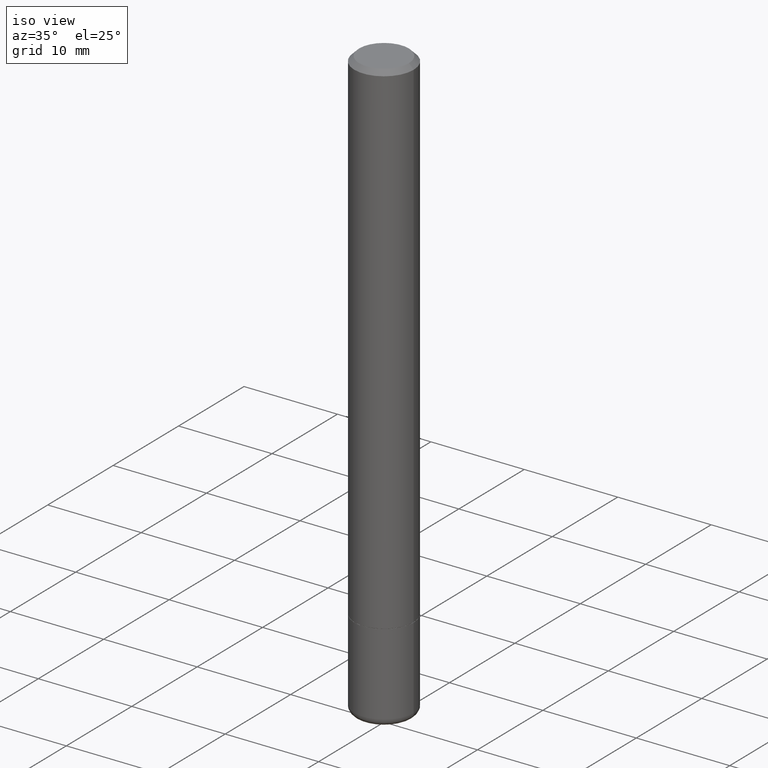
[diagram: clean part render]
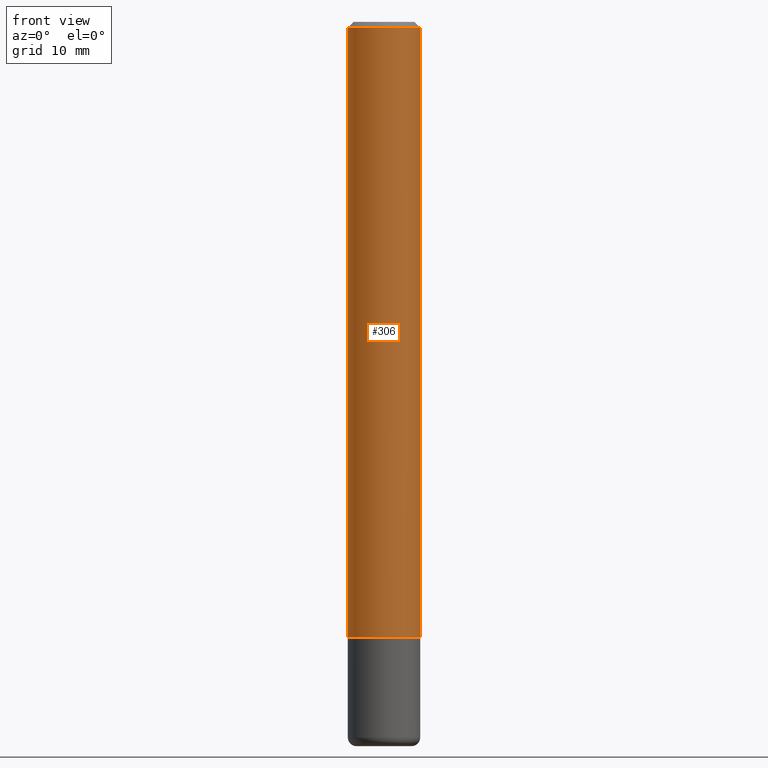
[diagram: tour spotlight — one face highlighted and labeled with its STEP entity id]
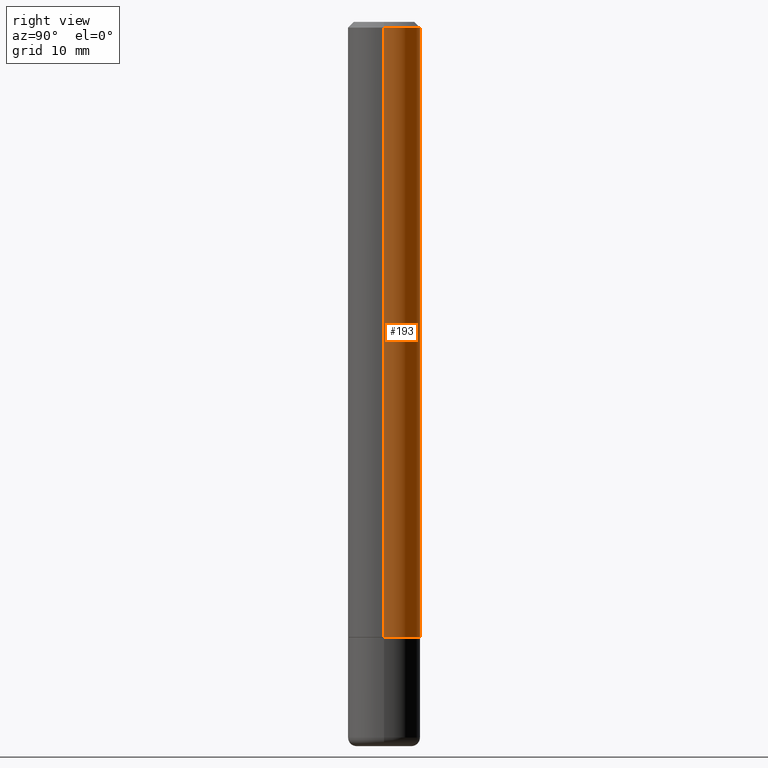
[diagram: tour spotlight — one face highlighted and labeled with its STEP entity id]
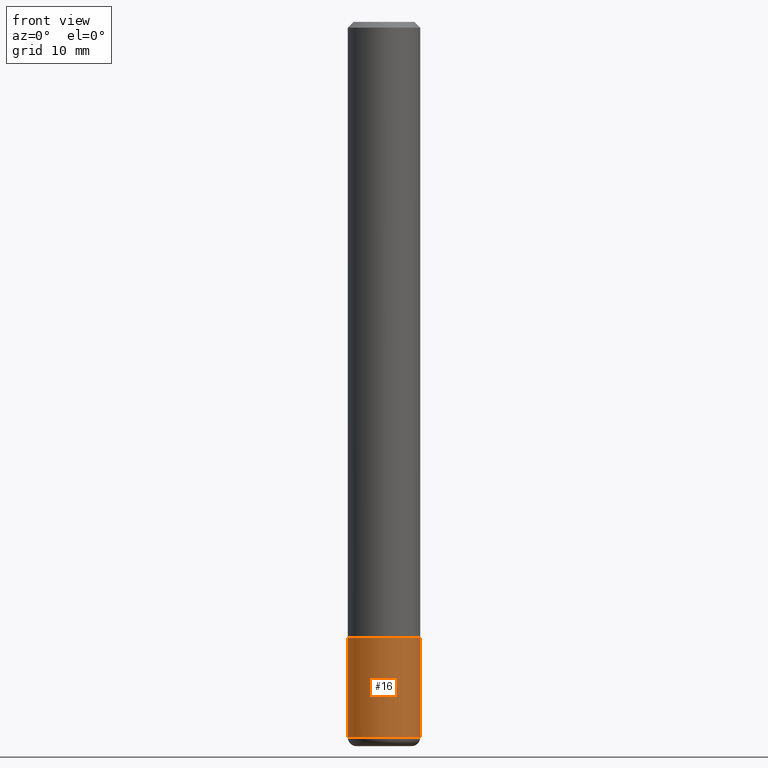
[diagram: tour spotlight — one face highlighted and labeled with its STEP entity id]
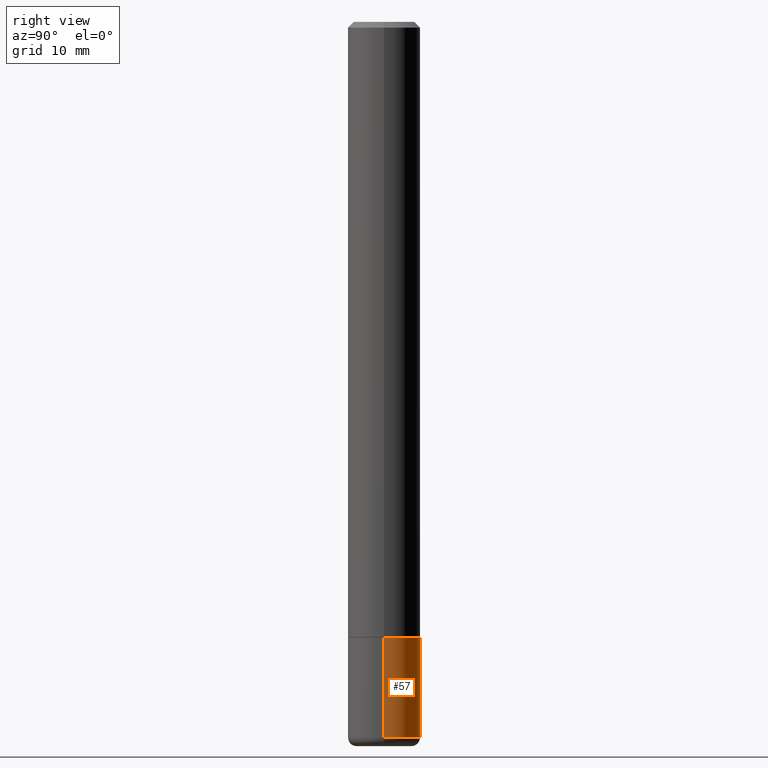
[diagram: tour spotlight — one face highlighted and labeled with its STEP entity id]
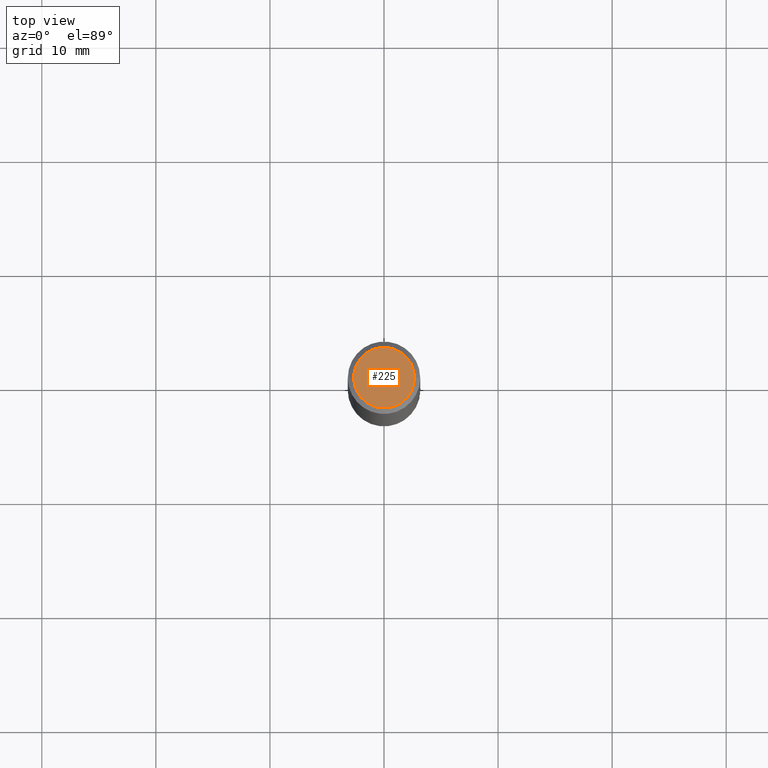
[diagram: tour spotlight — one face highlighted and labeled with its STEP entity id]
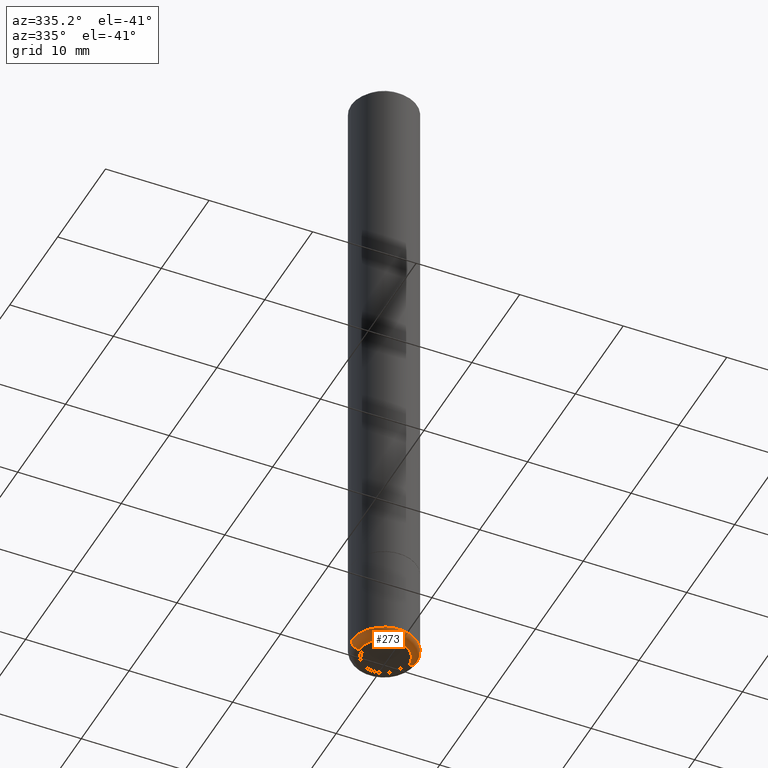
[diagram: tour spotlight — one face highlighted and labeled with its STEP entity id]
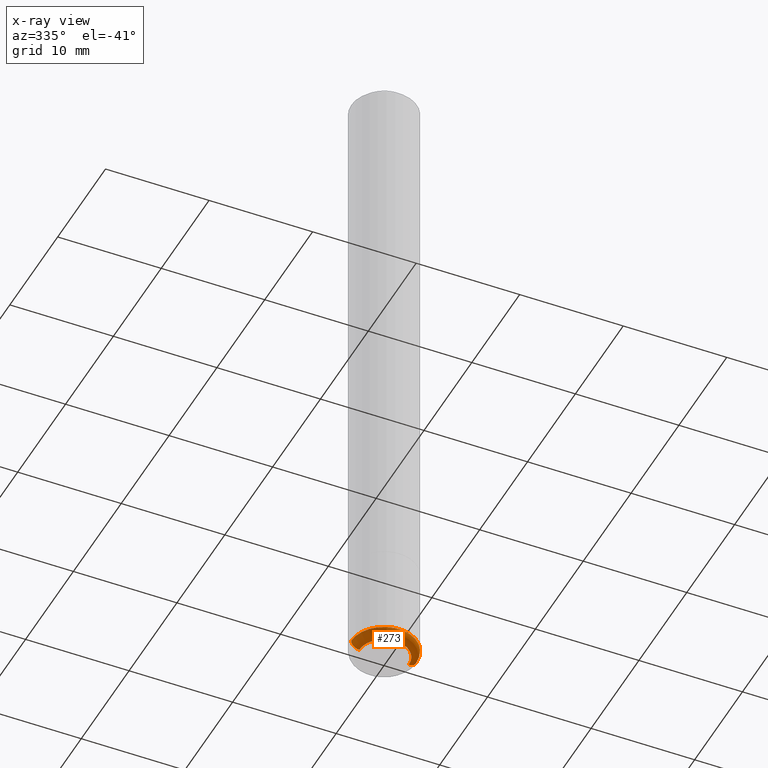
[diagram: x-ray of the same camera — body ghosted, this tour face saturated]
A machine part: a face-by-face anatomy tour. The part has 17 B-rep faces; the first image is the clean iso view, then the 6 largest visible faces are spotlighted one at a time (largest first), each with its STEP entity span.

Face 1 — front view, entity #306. In plain terms, the highlighted cylindrical surface (edge-blend (fillet) strip) has radius 3.175 mm, axis along (-0, 0, 1).
Definition (entity closure, byte-faithful):
#12 = CYLINDRICAL_SURFACE ( 'NONE', #288, 0.1249999999999994865 ) ;
#23 = VERTEX_POINT ( 'NONE', #167 ) ;
#27 = CARTESIAN_POINT ( 'NONE',  ( -0.1249999999999993477, 8.030407079339155047E-16, -0.02000000000000009062 ) ) ;
#53 = DIRECTION ( 'NONE',  ( -2.445468806185136877E-29, 3.491481338843145188E-15, 1.000000000000000000 ) ) ;
#54 = DIRECTION ( 'NONE',  ( 1.000000000000000000, -6.982962677686265922E-15, 4.876176775795935793E-29 ) ) ;
#56 = CARTESIAN_POINT ( 'NONE',  ( 0.1249999999999993477, -9.273918764983002075E-16, -0.02000000000000009062 ) ) ;
#58 = VECTOR ( 'NONE', #332, 39.37007874015748143 ) ;
#70 = EDGE_CURVE ( 'NONE', #405, #116, #138, .T. ) ;
#77 = CIRCLE ( 'NONE', #362, 0.1249999999999996253 ) ;
#87 = LINE ( 'NONE', #387, #206 ) ;
#88 = FACE_OUTER_BOUND ( 'NONE', #454, .T. ) ;
#95 = DIRECTION ( 'NONE',  ( -2.445468806185136597E-29, 3.491481338843145583E-15, 1.000000000000000000 ) ) ;
#108 = ORIENTED_EDGE ( 'NONE', *, *, #119, .F. ) ;
#116 = VERTEX_POINT ( 'NONE', #56 ) ;
#119 = EDGE_CURVE ( 'NONE', #452, #405, #359, .T. ) ;
#128 = DIRECTION ( 'NONE',  ( 1.000000000000000000, -6.982962677686269077E-15, 0.000000000000000000 ) ) ;
#138 = CIRCLE ( 'NONE', #419, 0.1249999999999993477 ) ;
#148 = CARTESIAN_POINT ( 'NONE',  ( -0.1249999999999994865, 8.881784197001215839E-16, -6.148668862818606303E-30 ) ) ;
#167 = CARTESIAN_POINT ( 'NONE',  ( 0.1249999999999996253, -8.288776698413623955E-15, -2.124000000000000554 ) ) ;
#183 = DIRECTION ( 'NONE',  ( -2.445468806185136597E-29, 3.491481338843145583E-15, 1.000000000000000000 ) ) ;
#206 = VECTOR ( 'NONE', #53, 39.37007874015748143 ) ;
#242 = DIRECTION ( 'NONE',  ( 1.000000000000000000, -6.982962677686265922E-15, 0.000000000000000000 ) ) ;
#252 = CARTESIAN_POINT ( 'NONE',  ( -0.1249999999999996253, -2.854689575539726725E-15, -2.124000000000000554 ) ) ;
#288 = AXIS2_PLACEMENT_3D ( 'NONE', #388, #393, #54 ) ;
#306 = ADVANCED_FACE ( 'NONE', ( #88 ), #12, .T. ) ;
#309 = CARTESIAN_POINT ( 'NONE',  ( 4.890937612370295054E-31, -6.982962677686322424E-17, -0.02000000000000009062 ) ) ;
#320 = ORIENTED_EDGE ( 'NONE', *, *, #399, .T. ) ;
#328 = EDGE_CURVE ( 'NONE', #452, #23, #77, .T. ) ;
#332 = DIRECTION ( 'NONE',  ( -2.445468806185136877E-29, 3.491481338843145188E-15, 1.000000000000000000 ) ) ;
#359 = LINE ( 'NONE', #148, #58 ) ;
#362 = AXIS2_PLACEMENT_3D ( 'NONE', #464, #95, #128 ) ;
#387 = CARTESIAN_POINT ( 'NONE',  ( 0.1249999999999994865, -8.728703347107796903E-16, 6.095220969744894518E-30 ) ) ;
#388 = CARTESIAN_POINT ( 'NONE',  ( 0.000000000000000000, 0.000000000000000000, 0.000000000000000000 ) ) ;
#393 = DIRECTION ( 'NONE',  ( -2.445468806185136597E-29, 3.491481338843145583E-15, 1.000000000000000000 ) ) ;
#398 = ORIENTED_EDGE ( 'NONE', *, *, #328, .T. ) ;
#399 = EDGE_CURVE ( 'NONE', #23, #116, #87, .T. ) ;
#405 = VERTEX_POINT ( 'NONE', #27 ) ;
#419 = AXIS2_PLACEMENT_3D ( 'NONE', #309, #183, #242 ) ;
#447 = ORIENTED_EDGE ( 'NONE', *, *, #70, .F. ) ;
#452 = VERTEX_POINT ( 'NONE', #252 ) ;
#454 = EDGE_LOOP ( 'NONE', ( #108, #398, #320, #447 ) ) ;
#464 = CARTESIAN_POINT ( 'NONE',  ( 5.194175744337230786E-29, -7.415906363702842194E-15, -2.124000000000000554 ) ) ;

Face 2 — right view, entity #193. In plain terms, the highlighted cylindrical surface (edge-blend (fillet) strip) has radius 3.175 mm, axis along (-0, 0, 1).
Definition (entity closure, byte-faithful):
#17 = CIRCLE ( 'NONE', #29, 0.1249999999999993477 ) ;
#23 = VERTEX_POINT ( 'NONE', #167 ) ;
#27 = CARTESIAN_POINT ( 'NONE',  ( -0.1249999999999993477, 8.030407079339155047E-16, -0.02000000000000009062 ) ) ;
#29 = AXIS2_PLACEMENT_3D ( 'NONE', #80, #143, #342 ) ;
#53 = DIRECTION ( 'NONE',  ( -2.445468806185136877E-29, 3.491481338843145188E-15, 1.000000000000000000 ) ) ;
#56 = CARTESIAN_POINT ( 'NONE',  ( 0.1249999999999993477, -9.273918764983002075E-16, -0.02000000000000009062 ) ) ;
#58 = VECTOR ( 'NONE', #332, 39.37007874015748143 ) ;
#60 = CYLINDRICAL_SURFACE ( 'NONE', #226, 0.1249999999999994865 ) ;
#73 = DIRECTION ( 'NONE',  ( 1.000000000000000000, -6.982962677686269077E-15, 0.000000000000000000 ) ) ;
#80 = CARTESIAN_POINT ( 'NONE',  ( 4.890937612370295054E-31, -6.982962677686322424E-17, -0.02000000000000009062 ) ) ;
#87 = LINE ( 'NONE', #387, #206 ) ;
#116 = VERTEX_POINT ( 'NONE', #56 ) ;
#119 = EDGE_CURVE ( 'NONE', #452, #405, #359, .T. ) ;
#143 = DIRECTION ( 'NONE',  ( -2.445468806185136597E-29, 3.491481338843145583E-15, 1.000000000000000000 ) ) ;
#148 = CARTESIAN_POINT ( 'NONE',  ( -0.1249999999999994865, 8.881784197001215839E-16, -6.148668862818606303E-30 ) ) ;
#158 = ORIENTED_EDGE ( 'NONE', *, *, #399, .F. ) ;
#167 = CARTESIAN_POINT ( 'NONE',  ( 0.1249999999999996253, -8.288776698413623955E-15, -2.124000000000000554 ) ) ;
#185 = ORIENTED_EDGE ( 'NONE', *, *, #233, .F. ) ;
#193 = ADVANCED_FACE ( 'NONE', ( #397 ), #60, .T. ) ;
#206 = VECTOR ( 'NONE', #53, 39.37007874015748143 ) ;
#207 = CARTESIAN_POINT ( 'NONE',  ( 0.000000000000000000, 0.000000000000000000, 0.000000000000000000 ) ) ;
#216 = EDGE_CURVE ( 'NONE', #23, #452, #475, .T. ) ;
#226 = AXIS2_PLACEMENT_3D ( 'NONE', #207, #401, #473 ) ;
#233 = EDGE_CURVE ( 'NONE', #116, #405, #17, .T. ) ;
#252 = CARTESIAN_POINT ( 'NONE',  ( -0.1249999999999996253, -2.854689575539726725E-15, -2.124000000000000554 ) ) ;
#267 = CARTESIAN_POINT ( 'NONE',  ( 5.194175744337230786E-29, -7.415906363702842194E-15, -2.124000000000000554 ) ) ;
#332 = DIRECTION ( 'NONE',  ( -2.445468806185136877E-29, 3.491481338843145188E-15, 1.000000000000000000 ) ) ;
#338 = AXIS2_PLACEMENT_3D ( 'NONE', #267, #413, #73 ) ;
#342 = DIRECTION ( 'NONE',  ( 1.000000000000000000, -6.982962677686265922E-15, 0.000000000000000000 ) ) ;
#359 = LINE ( 'NONE', #148, #58 ) ;
#371 = ORIENTED_EDGE ( 'NONE', *, *, #119, .T. ) ;
#377 = EDGE_LOOP ( 'NONE', ( #488, #371, #185, #158 ) ) ;
#387 = CARTESIAN_POINT ( 'NONE',  ( 0.1249999999999994865, -8.728703347107796903E-16, 6.095220969744894518E-30 ) ) ;
#397 = FACE_OUTER_BOUND ( 'NONE', #377, .T. ) ;
#399 = EDGE_CURVE ( 'NONE', #23, #116, #87, .T. ) ;
#401 = DIRECTION ( 'NONE',  ( -2.445468806185136597E-29, 3.491481338843145583E-15, 1.000000000000000000 ) ) ;
#405 = VERTEX_POINT ( 'NONE', #27 ) ;
#413 = DIRECTION ( 'NONE',  ( -2.445468806185136597E-29, 3.491481338843145583E-15, 1.000000000000000000 ) ) ;
#452 = VERTEX_POINT ( 'NONE', #252 ) ;
#473 = DIRECTION ( 'NONE',  ( 1.000000000000000000, -6.982962677686265922E-15, 4.876176775795935793E-29 ) ) ;
#475 = CIRCLE ( 'NONE', #338, 0.1249999999999996253 ) ;
#488 = ORIENTED_EDGE ( 'NONE', *, *, #216, .T. ) ;

Face 3 — front view, entity #16. In plain terms, the highlighted cylindrical surface (edge-blend (fillet) strip) has radius 3.175 mm, axis along (-0, 0, 1).
Definition (entity closure, byte-faithful):
#16 = ADVANCED_FACE ( 'NONE', ( #462 ), #381, .T. ) ;
#31 = DIRECTION ( 'NONE',  ( 1.000000000000000000, -6.982962677686261189E-15, 0.000000000000000000 ) ) ;
#42 = DIRECTION ( 'NONE',  ( 1.000000000000000000, -6.982962677686269077E-15, 0.000000000000000000 ) ) ;
#43 = DIRECTION ( 'NONE',  ( -2.445468806185136597E-29, 3.491481338843145583E-15, 1.000000000000000000 ) ) ;
#47 = EDGE_CURVE ( 'NONE', #156, #212, #177, .T. ) ;
#65 = ORIENTED_EDGE ( 'NONE', *, *, #47, .T. ) ;
#67 = CARTESIAN_POINT ( 'NONE',  ( 0.000000000000000000, 0.000000000000000000, 0.000000000000000000 ) ) ;
#76 = DIRECTION ( 'NONE',  ( -2.445468806185136877E-29, 3.491481338843145188E-15, 1.000000000000000000 ) ) ;
#78 = VERTEX_POINT ( 'NONE', #417 ) ;
#101 = LINE ( 'NONE', #400, #102 ) ;
#102 = VECTOR ( 'NONE', #470, 39.37007874015748143 ) ;
#118 = VERTEX_POINT ( 'NONE', #200 ) ;
#120 = AXIS2_PLACEMENT_3D ( 'NONE', #257, #345, #31 ) ;
#126 = DIRECTION ( 'NONE',  ( 1.000000000000000000, -6.982962677686266711E-15, 4.876176775795935793E-29 ) ) ;
#136 = EDGE_LOOP ( 'NONE', ( #366, #65, #171, #445 ) ) ;
#142 = CARTESIAN_POINT ( 'NONE',  ( 0.1250000000000000278, -9.496833230000679553E-15, -2.470001142308074993 ) ) ;
#156 = VERTEX_POINT ( 'NONE', #203 ) ;
#171 = ORIENTED_EDGE ( 'NONE', *, *, #223, .T. ) ;
#174 = EDGE_CURVE ( 'NONE', #156, #78, #101, .T. ) ;
#177 = CIRCLE ( 'NONE', #120, 0.1250000000000000278 ) ;
#189 = LINE ( 'NONE', #416, #458 ) ;
#197 = CIRCLE ( 'NONE', #380, 0.1249999999999996253 ) ;
#200 = CARTESIAN_POINT ( 'NONE',  ( 0.1249999999999996253, -8.292268179752466962E-15, -2.125000000000000444 ) ) ;
#203 = CARTESIAN_POINT ( 'NONE',  ( -0.1250000000000000278, -7.133501950465665475E-15, -2.470001142308074993 ) ) ;
#212 = VERTEX_POINT ( 'NONE', #142 ) ;
#223 = EDGE_CURVE ( 'NONE', #212, #118, #189, .T. ) ;
#257 = CARTESIAN_POINT ( 'NONE',  ( 6.040310744756052718E-29, -8.623962895289896214E-15, -2.470001142308074993 ) ) ;
#345 = DIRECTION ( 'NONE',  ( -2.445468806185136597E-29, 3.491481338843145583E-15, 1.000000000000000000 ) ) ;
#366 = ORIENTED_EDGE ( 'NONE', *, *, #174, .F. ) ;
#380 = AXIS2_PLACEMENT_3D ( 'NONE', #484, #486, #42 ) ;
#381 = CYLINDRICAL_SURFACE ( 'NONE', #390, 0.1249999999999998335 ) ;
#390 = AXIS2_PLACEMENT_3D ( 'NONE', #67, #43, #126 ) ;
#400 = CARTESIAN_POINT ( 'NONE',  ( -0.1249999999999998335, 8.881784197001240490E-16, -6.148668862818623819E-30 ) ) ;
#416 = CARTESIAN_POINT ( 'NONE',  ( 0.1249999999999998335, -8.728703347107821555E-16, 6.095220969744911333E-30 ) ) ;
#417 = CARTESIAN_POINT ( 'NONE',  ( -0.1249999999999996253, -7.133501950465667053E-15, -2.125000000000000444 ) ) ;
#445 = ORIENTED_EDGE ( 'NONE', *, *, #477, .F. ) ;
#458 = VECTOR ( 'NONE', #76, 39.37007874015748143 ) ;
#462 = FACE_OUTER_BOUND ( 'NONE', #136, .T. ) ;
#470 = DIRECTION ( 'NONE',  ( -2.445468806185136877E-29, 3.491481338843145188E-15, 1.000000000000000000 ) ) ;
#477 = EDGE_CURVE ( 'NONE', #78, #118, #197, .T. ) ;
#484 = CARTESIAN_POINT ( 'NONE',  ( 5.196621213143416389E-29, -7.419397845041685201E-15, -2.125000000000000444 ) ) ;
#486 = DIRECTION ( 'NONE',  ( -2.445468806185136597E-29, 3.491481338843145583E-15, 1.000000000000000000 ) ) ;

Face 4 — right view, entity #57. In plain terms, the highlighted cylindrical surface (edge-blend (fillet) strip) has radius 3.175 mm, axis along (-0, 0, 1).
Definition (entity closure, byte-faithful):
#22 = DIRECTION ( 'NONE',  ( 1.000000000000000000, -6.982962677686269077E-15, 0.000000000000000000 ) ) ;
#38 = CIRCLE ( 'NONE', #179, 0.1249999999999996253 ) ;
#45 = CARTESIAN_POINT ( 'NONE',  ( 6.040310744756052718E-29, -8.623962895289896214E-15, -2.470001142308074993 ) ) ;
#57 = ADVANCED_FACE ( 'NONE', ( #296 ), #270, .T. ) ;
#66 = ORIENTED_EDGE ( 'NONE', *, *, #151, .F. ) ;
#76 = DIRECTION ( 'NONE',  ( -2.445468806185136877E-29, 3.491481338843145188E-15, 1.000000000000000000 ) ) ;
#78 = VERTEX_POINT ( 'NONE', #417 ) ;
#96 = CARTESIAN_POINT ( 'NONE',  ( 5.196621213143416389E-29, -7.419397845041685201E-15, -2.125000000000000444 ) ) ;
#98 = ORIENTED_EDGE ( 'NONE', *, *, #223, .F. ) ;
#101 = LINE ( 'NONE', #400, #102 ) ;
#102 = VECTOR ( 'NONE', #470, 39.37007874015748143 ) ;
#118 = VERTEX_POINT ( 'NONE', #200 ) ;
#142 = CARTESIAN_POINT ( 'NONE',  ( 0.1250000000000000278, -9.496833230000679553E-15, -2.470001142308074993 ) ) ;
#147 = EDGE_LOOP ( 'NONE', ( #221, #437, #66, #98 ) ) ;
#151 = EDGE_CURVE ( 'NONE', #118, #78, #38, .T. ) ;
#156 = VERTEX_POINT ( 'NONE', #203 ) ;
#157 = DIRECTION ( 'NONE',  ( 1.000000000000000000, -6.982962677686261189E-15, 0.000000000000000000 ) ) ;
#174 = EDGE_CURVE ( 'NONE', #156, #78, #101, .T. ) ;
#179 = AXIS2_PLACEMENT_3D ( 'NONE', #96, #324, #22 ) ;
#189 = LINE ( 'NONE', #416, #458 ) ;
#196 = DIRECTION ( 'NONE',  ( 1.000000000000000000, -6.982962677686266711E-15, 4.876176775795935793E-29 ) ) ;
#200 = CARTESIAN_POINT ( 'NONE',  ( 0.1249999999999996253, -8.292268179752466962E-15, -2.125000000000000444 ) ) ;
#203 = CARTESIAN_POINT ( 'NONE',  ( -0.1250000000000000278, -7.133501950465665475E-15, -2.470001142308074993 ) ) ;
#212 = VERTEX_POINT ( 'NONE', #142 ) ;
#218 = AXIS2_PLACEMENT_3D ( 'NONE', #45, #350, #157 ) ;
#221 = ORIENTED_EDGE ( 'NONE', *, *, #271, .T. ) ;
#223 = EDGE_CURVE ( 'NONE', #212, #118, #189, .T. ) ;
#270 = CYLINDRICAL_SURFACE ( 'NONE', #402, 0.1249999999999998335 ) ;
#271 = EDGE_CURVE ( 'NONE', #212, #156, #438, .T. ) ;
#296 = FACE_OUTER_BOUND ( 'NONE', #147, .T. ) ;
#314 = DIRECTION ( 'NONE',  ( -2.445468806185136597E-29, 3.491481338843145583E-15, 1.000000000000000000 ) ) ;
#324 = DIRECTION ( 'NONE',  ( -2.445468806185136597E-29, 3.491481338843145583E-15, 1.000000000000000000 ) ) ;
#350 = DIRECTION ( 'NONE',  ( -2.445468806185136597E-29, 3.491481338843145583E-15, 1.000000000000000000 ) ) ;
#400 = CARTESIAN_POINT ( 'NONE',  ( -0.1249999999999998335, 8.881784197001240490E-16, -6.148668862818623819E-30 ) ) ;
#402 = AXIS2_PLACEMENT_3D ( 'NONE', #423, #314, #196 ) ;
#416 = CARTESIAN_POINT ( 'NONE',  ( 0.1249999999999998335, -8.728703347107821555E-16, 6.095220969744911333E-30 ) ) ;
#417 = CARTESIAN_POINT ( 'NONE',  ( -0.1249999999999996253, -7.133501950465667053E-15, -2.125000000000000444 ) ) ;
#423 = CARTESIAN_POINT ( 'NONE',  ( 0.000000000000000000, 0.000000000000000000, 0.000000000000000000 ) ) ;
#437 = ORIENTED_EDGE ( 'NONE', *, *, #174, .T. ) ;
#438 = CIRCLE ( 'NONE', #218, 0.1250000000000000278 ) ;
#458 = VECTOR ( 'NONE', #76, 39.37007874015748143 ) ;
#470 = DIRECTION ( 'NONE',  ( -2.445468806185136877E-29, 3.491481338843145188E-15, 1.000000000000000000 ) ) ;

Face 5 — top view, entity #225. In plain terms, the highlighted planar face has unit normal (0, -0, -1).
Definition (entity closure, byte-faithful):
#9 = DIRECTION ( 'NONE',  ( 1.000000000000000000, -6.982962677686267499E-15, 4.874400871621268483E-29 ) ) ;
#26 = AXIS2_PLACEMENT_3D ( 'NONE', #41, #492, #421 ) ;
#41 = CARTESIAN_POINT ( 'NONE',  ( 7.332110811570533898E-16, 0.1049999999999993577, -3.879481030290301102E-16 ) ) ;
#97 = DIRECTION ( 'NONE',  ( -2.445468806185136597E-29, 3.491481338843145583E-15, 1.000000000000000000 ) ) ;
#106 = VERTEX_POINT ( 'NONE', #391 ) ;
#152 = EDGE_CURVE ( 'NONE', #222, #106, #204, .T. ) ;
#204 = CIRCLE ( 'NONE', #351, 0.1049999999999993577 ) ;
#222 = VERTEX_POINT ( 'NONE', #378 ) ;
#225 = ADVANCED_FACE ( 'NONE', ( #343 ), #227, .F. ) ;
#227 = PLANE ( 'NONE',  #26 ) ;
#297 = EDGE_LOOP ( 'NONE', ( #341, #450 ) ) ;
#317 = DIRECTION ( 'NONE',  ( 1.000000000000000000, -6.982962677686267499E-15, 4.874400871621268483E-29 ) ) ;
#325 = EDGE_CURVE ( 'NONE', #106, #222, #330, .T. ) ;
#330 = CIRCLE ( 'NONE', #466, 0.1049999999999993577 ) ;
#341 = ORIENTED_EDGE ( 'NONE', *, *, #325, .T. ) ;
#343 = FACE_OUTER_BOUND ( 'NONE', #297, .T. ) ;
#351 = AXIS2_PLACEMENT_3D ( 'NONE', #440, #97, #317 ) ;
#352 = DIRECTION ( 'NONE',  ( -2.445468806185136597E-29, 3.491481338843145583E-15, 1.000000000000000000 ) ) ;
#378 = CARTESIAN_POINT ( 'NONE',  ( 0.1049999999999993577, -8.238720831321533257E-16, -4.268512490099867088E-17 ) ) ;
#391 = CARTESIAN_POINT ( 'NONE',  ( -0.1049999999999993577, 7.681258945454844472E-16, -4.268512490100935748E-17 ) ) ;
#421 = DIRECTION ( 'NONE',  ( -1.000000000000000000, 6.982962677686265922E-15, -4.876176775795935793E-29 ) ) ;
#440 = CARTESIAN_POINT ( 'NONE',  ( 1.043851414335219781E-45, -1.490343170380447145E-31, -4.268512490100411279E-17 ) ) ;
#450 = ORIENTED_EDGE ( 'NONE', *, *, #152, .T. ) ;
#461 = CARTESIAN_POINT ( 'NONE',  ( 1.043851414335219781E-45, -1.490343170380447145E-31, -4.268512490100411279E-17 ) ) ;
#466 = AXIS2_PLACEMENT_3D ( 'NONE', #461, #352, #9 ) ;
#492 = DIRECTION ( 'NONE',  ( 2.438088387897960049E-29, -3.491481338843145188E-15, -1.000000000000000000 ) ) ;

Face 6 — auxiliary view, entity #273. An x-ray twin of the same camera follows (body ghosted, this face saturated) — the face is partly hidden behind the body. In plain terms, the highlighted toroidal blend (fillet) surface has major radius 2.413 mm and minor (blend) radius 0.762 mm.
Definition (entity closure, byte-faithful):
#30 = ORIENTED_EDGE ( 'NONE', *, *, #47, .F. ) ;
#31 = DIRECTION ( 'NONE',  ( 1.000000000000000000, -6.982962677686261189E-15, 0.000000000000000000 ) ) ;
#36 = DIRECTION ( 'NONE',  ( -2.445468806185136597E-29, 3.491481338843145583E-15, 1.000000000000000000 ) ) ;
#40 = FACE_OUTER_BOUND ( 'NONE', #75, .T. ) ;
#47 = EDGE_CURVE ( 'NONE', #156, #212, #177, .T. ) ;
#48 = ORIENTED_EDGE ( 'NONE', *, *, #137, .F. ) ;
#75 = EDGE_LOOP ( 'NONE', ( #48, #302, #372, #30 ) ) ;
#91 = AXIS2_PLACEMENT_3D ( 'NONE', #474, #285, #434 ) ;
#110 = DIRECTION ( 'NONE',  ( -1.000000000000000000, 7.105427357601001859E-15, 0.000000000000000000 ) ) ;
#120 = AXIS2_PLACEMENT_3D ( 'NONE', #257, #345, #31 ) ;
#124 = CARTESIAN_POINT ( 'NONE',  ( 6.113672015462842613E-29, -8.728703347107864943E-15, -2.500000000000000000 ) ) ;
#137 = EDGE_CURVE ( 'NONE', #379, #156, #480, .T. ) ;
#142 = CARTESIAN_POINT ( 'NONE',  ( 0.1250000000000000278, -9.496833230000679553E-15, -2.470001142308074993 ) ) ;
#156 = VERTEX_POINT ( 'NONE', #203 ) ;
#177 = CIRCLE ( 'NONE', #120, 0.1250000000000000278 ) ;
#203 = CARTESIAN_POINT ( 'NONE',  ( -0.1250000000000000278, -7.133501950465665475E-15, -2.470001142308074993 ) ) ;
#205 = AXIS2_PLACEMENT_3D ( 'NONE', #298, #448, #110 ) ;
#212 = VERTEX_POINT ( 'NONE', #142 ) ;
#235 = CARTESIAN_POINT ( 'NONE',  ( -0.09473820393504912840, -7.895666198323776938E-15, -2.500000000000000000 ) ) ;
#257 = CARTESIAN_POINT ( 'NONE',  ( 6.040310744756052718E-29, -8.623962895289896214E-15, -2.470001142308074993 ) ) ;
#258 = AXIS2_PLACEMENT_3D ( 'NONE', #124, #36, #412 ) ;
#262 = EDGE_CURVE ( 'NONE', #379, #287, #301, .T. ) ;
#266 = CIRCLE ( 'NONE', #294, 0.02999999999999981501 ) ;
#273 = ADVANCED_FACE ( 'NONE', ( #40 ), #389, .T. ) ;
#283 = CARTESIAN_POINT ( 'NONE',  ( 0.09473820393504912840, -9.390256689337342116E-15, -2.500000000000000000 ) ) ;
#285 = DIRECTION ( 'NONE',  ( -2.445468806185136597E-29, 3.491481338843145583E-15, 1.000000000000000000 ) ) ;
#287 = VERTEX_POINT ( 'NONE', #283 ) ;
#294 = AXIS2_PLACEMENT_3D ( 'NONE', #431, #312, #426 ) ;
#298 = CARTESIAN_POINT ( 'NONE',  ( -0.09500000000000018152, -7.948947296317799649E-15, -2.470001142308074993 ) ) ;
#301 = CIRCLE ( 'NONE', #258, 0.09473820393504912840 ) ;
#302 = ORIENTED_EDGE ( 'NONE', *, *, #262, .T. ) ;
#312 = DIRECTION ( 'NONE',  ( -6.982962677686266711E-15, -1.000000000000000000, 3.491481338843145583E-15 ) ) ;
#319 = EDGE_CURVE ( 'NONE', #287, #212, #266, .T. ) ;
#345 = DIRECTION ( 'NONE',  ( -2.445468806185136597E-29, 3.491481338843145583E-15, 1.000000000000000000 ) ) ;
#372 = ORIENTED_EDGE ( 'NONE', *, *, #319, .T. ) ;
#379 = VERTEX_POINT ( 'NONE', #235 ) ;
#389 = TOROIDAL_SURFACE ( 'NONE', #91, 0.09500000000000018152, 0.02999999999999982542 ) ;
#412 = DIRECTION ( 'NONE',  ( 1.000000000000000000, -6.982962677686257244E-15, 0.000000000000000000 ) ) ;
#426 = DIRECTION ( 'NONE',  ( 1.000000000000000000, -6.982962677686246200E-15, 0.000000000000000000 ) ) ;
#431 = CARTESIAN_POINT ( 'NONE',  ( 0.09500000000000018152, -9.287344349670094392E-15, -2.470001142308074993 ) ) ;
#434 = DIRECTION ( 'NONE',  ( 1.000000000000000000, -6.982962677686262766E-15, 4.883557194083111780E-29 ) ) ;
#448 = DIRECTION ( 'NONE',  ( 7.105427357601001859E-15, 1.000000000000000000, -3.491481338843145583E-15 ) ) ;
#474 = CARTESIAN_POINT ( 'NONE',  ( 6.040310744756052718E-29, -8.623962895289896214E-15, -2.470001142308074993 ) ) ;
#480 = CIRCLE ( 'NONE', #205, 0.02999999999999981501 ) ;